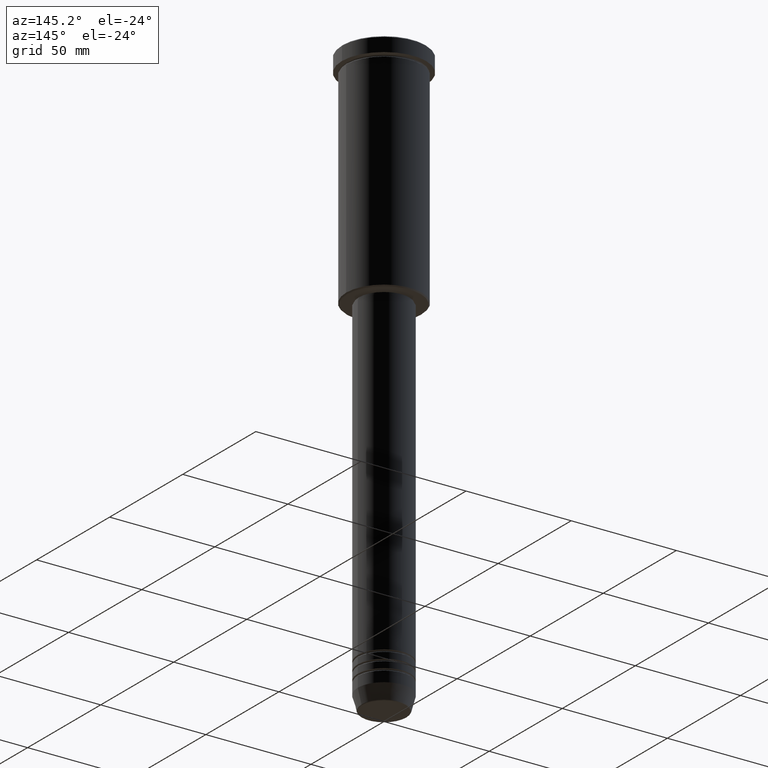
[diagram: clean part render]
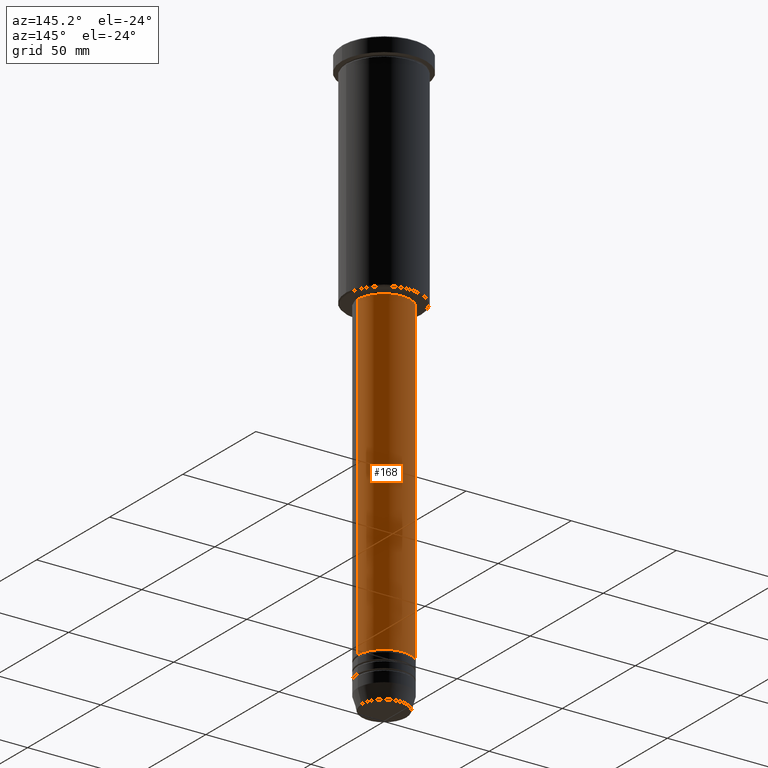
[diagram: same view with one face highlighted and labeled with its STEP entity id]
A machine part, auxiliary view. The second image highlights one B-rep face of the part: STEP entity #168.
In plain terms, the highlighted cylindrical surface (edge-blend (fillet) strip) has radius 12.5 mm, axis along (-0, -0, 1).
Its self-contained STEP definition (entity closure, byte-faithful):
#4 = EDGE_LOOP ( 'NONE', ( #294, #827, #587, #362 ) ) ;
#30 = CARTESIAN_POINT ( 'NONE',  ( 12.50000000000000000, 0.000000000000000000, 0.000000000000000000 ) ) ;
#66 = LINE ( 'NONE', #408, #1117 ) ;
#85 = EDGE_CURVE ( 'NONE', #405, #1145, #767, .T. ) ;
#165 = CARTESIAN_POINT ( 'NONE',  ( 0.000000000000000000, 0.000000000000000000, -106.9999999999999858 ) ) ;
#168 = ADVANCED_FACE ( 'NONE', ( #797 ), #905, .T. ) ;
#251 = CARTESIAN_POINT ( 'NONE',  ( 0.000000000000000000, 0.000000000000000000, 0.000000000000000000 ) ) ;
#260 = DIRECTION ( 'NONE',  ( -0.000000000000000000, -0.000000000000000000, 1.000000000000000000 ) ) ;
#294 = ORIENTED_EDGE ( 'NONE', *, *, #85, .T. ) ;
#325 = CARTESIAN_POINT ( 'NONE',  ( 0.000000000000000000, 0.000000000000000000, -259.0000000000000000 ) ) ;
#362 = ORIENTED_EDGE ( 'NONE', *, *, #550, .F. ) ;
#367 = CARTESIAN_POINT ( 'NONE',  ( 12.50000000000000000, 0.000000000000000000, -106.9999999999999858 ) ) ;
#392 = AXIS2_PLACEMENT_3D ( 'NONE', #165, #998, #706 ) ;
#402 = DIRECTION ( 'NONE',  ( -0.000000000000000000, -0.000000000000000000, 1.000000000000000000 ) ) ;
#404 = LINE ( 'NONE', #30, #1081 ) ;
#405 = VERTEX_POINT ( 'NONE', #721 ) ;
#408 = CARTESIAN_POINT ( 'NONE',  ( -12.50000000000000000, 1.530808498934191521E-15, 0.000000000000000000 ) ) ;
#469 = AXIS2_PLACEMENT_3D ( 'NONE', #251, #260, #984 ) ;
#502 = DIRECTION ( 'NONE',  ( -0.000000000000000000, -0.000000000000000000, 1.000000000000000000 ) ) ;
#517 = CARTESIAN_POINT ( 'NONE',  ( -12.50000000000000000, 1.530808498934191521E-15, -106.9999999999999858 ) ) ;
#550 = EDGE_CURVE ( 'NONE', #405, #1094, #404, .T. ) ;
#581 = AXIS2_PLACEMENT_3D ( 'NONE', #325, #582, #859 ) ;
#582 = DIRECTION ( 'NONE',  ( -0.000000000000000000, -0.000000000000000000, 1.000000000000000000 ) ) ;
#587 = ORIENTED_EDGE ( 'NONE', *, *, #777, .F. ) ;
#706 = DIRECTION ( 'NONE',  ( 1.000000000000000000, 0.000000000000000000, 0.000000000000000000 ) ) ;
#721 = CARTESIAN_POINT ( 'NONE',  ( 12.50000000000000000, 0.000000000000000000, -259.0000000000000000 ) ) ;
#767 = CIRCLE ( 'NONE', #581, 12.50000000000000000 ) ;
#777 = EDGE_CURVE ( 'NONE', #1094, #943, #916, .T. ) ;
#797 = FACE_OUTER_BOUND ( 'NONE', #4, .T. ) ;
#827 = ORIENTED_EDGE ( 'NONE', *, *, #922, .T. ) ;
#859 = DIRECTION ( 'NONE',  ( 1.000000000000000000, 0.000000000000000000, 0.000000000000000000 ) ) ;
#905 = CYLINDRICAL_SURFACE ( 'NONE', #469, 12.50000000000000000 ) ;
#916 = CIRCLE ( 'NONE', #392, 12.50000000000000000 ) ;
#922 = EDGE_CURVE ( 'NONE', #1145, #943, #66, .T. ) ;
#943 = VERTEX_POINT ( 'NONE', #517 ) ;
#984 = DIRECTION ( 'NONE',  ( 1.000000000000000000, 0.000000000000000000, 0.000000000000000000 ) ) ;
#998 = DIRECTION ( 'NONE',  ( -0.000000000000000000, -0.000000000000000000, 1.000000000000000000 ) ) ;
#1081 = VECTOR ( 'NONE', #502, 1000.000000000000000 ) ;
#1094 = VERTEX_POINT ( 'NONE', #367 ) ;
#1117 = VECTOR ( 'NONE', #402, 1000.000000000000000 ) ;
#1145 = VERTEX_POINT ( 'NONE', #1160 ) ;
#1160 = CARTESIAN_POINT ( 'NONE',  ( -12.50000000000000000, 1.530808498934191521E-15, -259.0000000000000000 ) ) ;